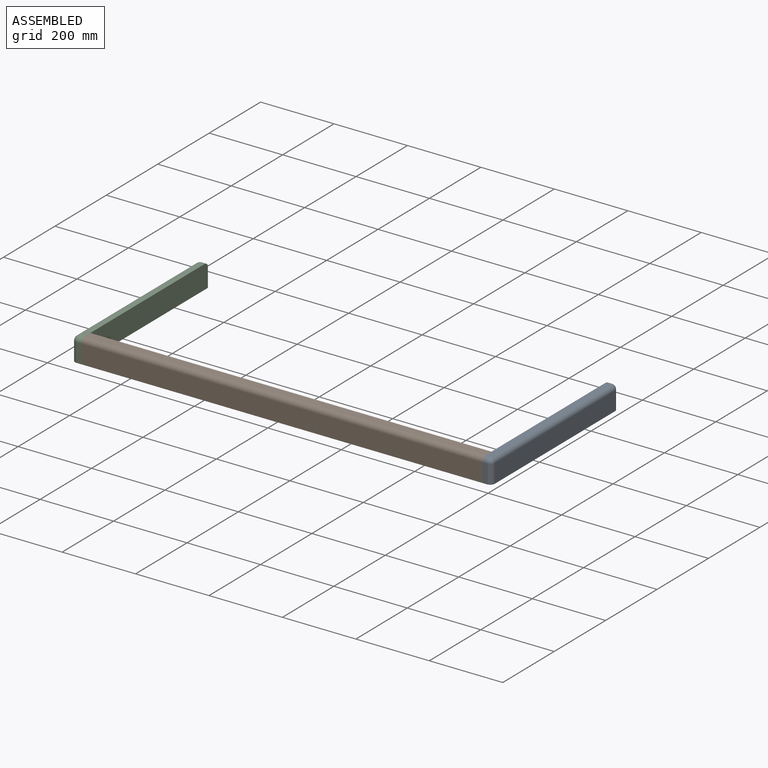
[diagram: assembled view]
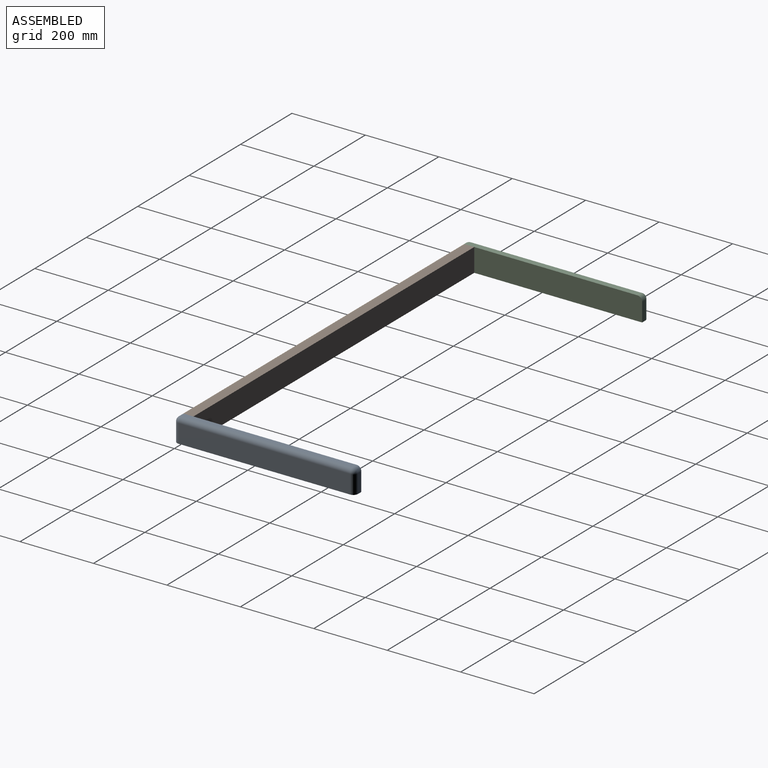
[diagram: assembled view, second angle]
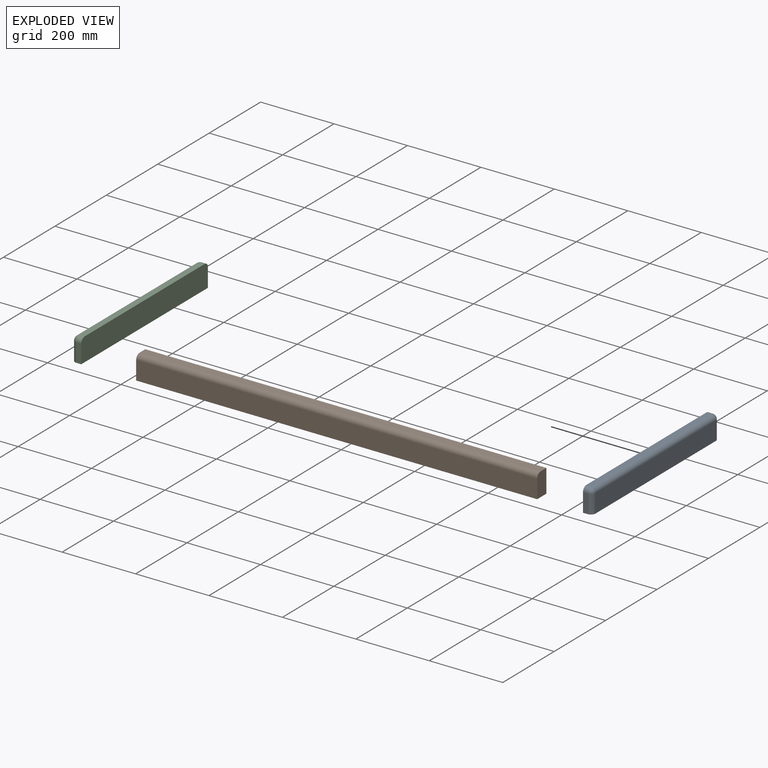
[diagram: exploded view]
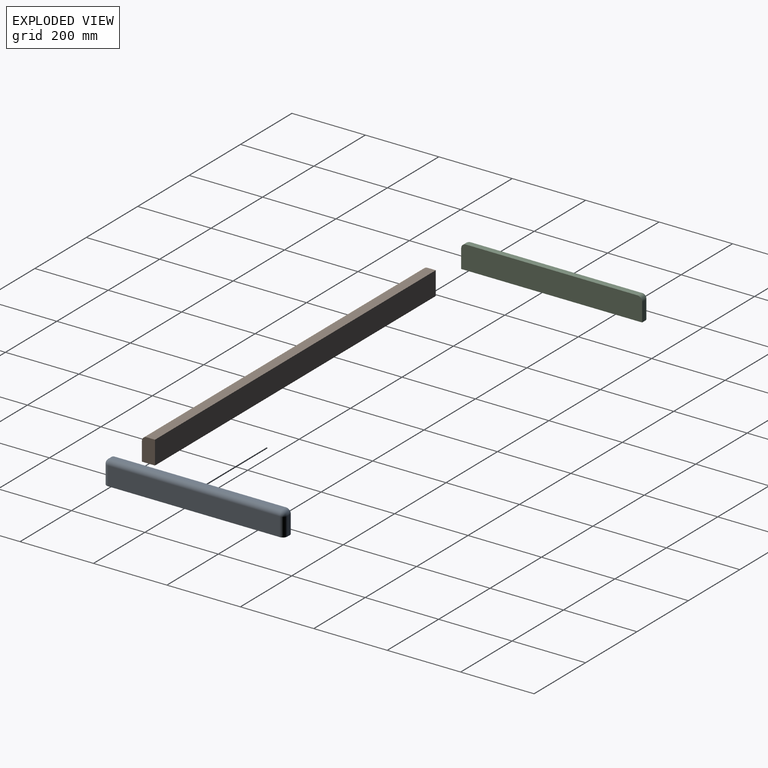
[diagram: exploded view, second angle]
ASSEMBLY  parts=3 mates=2
PART A: 13 faces, bbox 492.8x25.4x63.5 mm
  f0: plane 492.76x63.5mm, normal (0,1,0), area 31221mm2, adj f1,f3,f4,f5,f6,f9
  f1: plane 50.8x12.7mm, normal (-1,0,0), area 645.2mm2, adj f0,f5,f9,f12
  f2: plane 467.36x50.8mm, normal (0,-1,0), area 23741.9mm2, adj f5,f7,f10,f12
  f3: plane 50.8x12.7mm, normal (1,0,0), area 645.2mm2, adj f0,f5,f6,f7
  f4: plane 467.36x12.7mm, normal (0,0,1), area 5935.5mm2, adj f0,f6,f9,f10
  f5: plane 492.76x25.4mm, normal (0,0,-1), area 12446.9mm2, adj f0,f1,f2,f3,f7,f12
  f6: cylinder r=12.7mm len=12.7mm, axis (0,-1,0), area 253.4mm2, adj f0,f3,f4,f8
  f7: cylinder r=12.7mm len=50.8mm, axis (0,0,1), area 1013.4mm2, adj f2,f3,f5,f8
  f8: sphere r=12.7mm, area 253.4mm2, adj f6,f7,f10
  f9: cylinder r=12.7mm len=12.7mm, axis (0,1,0), area 253.4mm2, adj f0,f1,f4,f11
  f10: cylinder r=12.7mm len=467.36mm, axis (-1,0,0), area 9323.4mm2, adj f2,f4,f8,f11
  f11: sphere r=12.7mm, area 253.4mm2, adj f9,f10,f12
  f12: cylinder r=12.7mm len=50.8mm, axis (0,0,-1), area 1013.4mm2, adj f1,f2,f5,f11
PART B: 7 faces, bbox 1092.2x35.6x63.5 mm
  f0: plane 1092.2x50.8mm, normal (0,-1,0), area 55483.8mm2, adj f1,f3,f5,f6
  f1: plane 63.5x35.56mm, normal (1,0,0), area 2223.4mm2, adj f0,f2,f4,f5,f6
  f2: plane 1092.2x63.5mm, normal (0,1,0), area 69354.7mm2, adj f1,f3,f4,f5
  f3: plane 63.5x35.56mm, normal (-1,0,0), area 2223.4mm2, adj f0,f2,f4,f5,f6
  f4: plane 1092.2x22.86mm, normal (0,0,1), area 24967.7mm2, adj f1,f2,f3,f6
  f5: plane 1092.2x35.56mm, normal (0,0,-1), area 38838.6mm2, adj f0,f1,f2,f3
  f6: cylinder r=12.7mm len=1092.2mm, axis (-1,0,0), area 21788.4mm2, adj f0,f1,f3,f4
PART C: same geometry as A
PLACE A rot(axis=(0,0,1),90deg) t=(-405.47,-2466.09,139.6)mm
PLACE B t=(-1646.08,-778.96,139.6)mm
PLACE C rot(axis=(0,0,-1),90deg) t=(-1123.69,-1033.78,139.6)mm
MATE fastened C.f0 <-> B.f3  axis (1,0,0) through (-1310.68,-1996.32,139.6)mm
MATE fastened B.f1 <-> A.f0  axis (1,0,0) through (-218.48,-1996.32,139.6)mm
